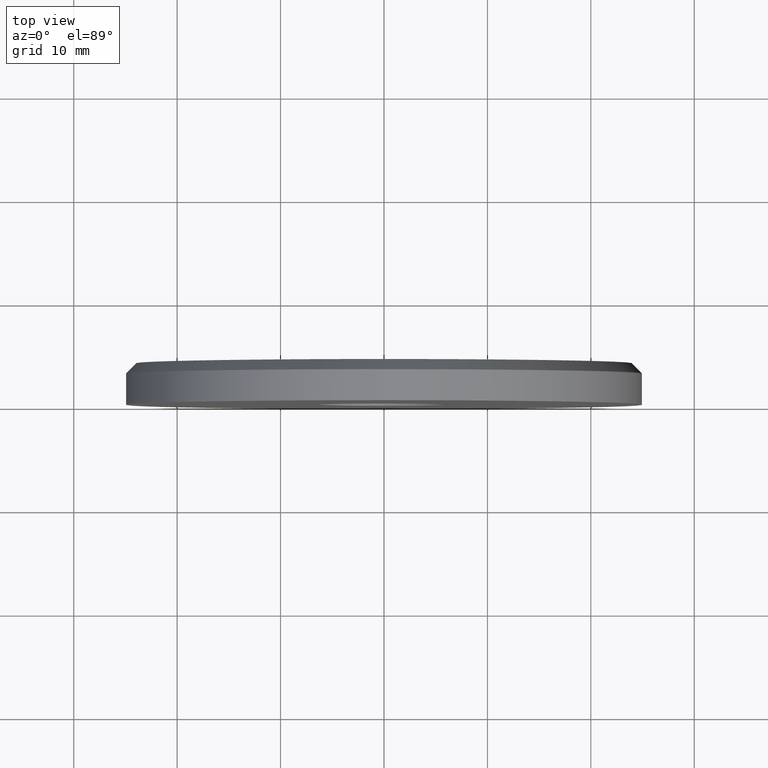
[diagram: clean part render]
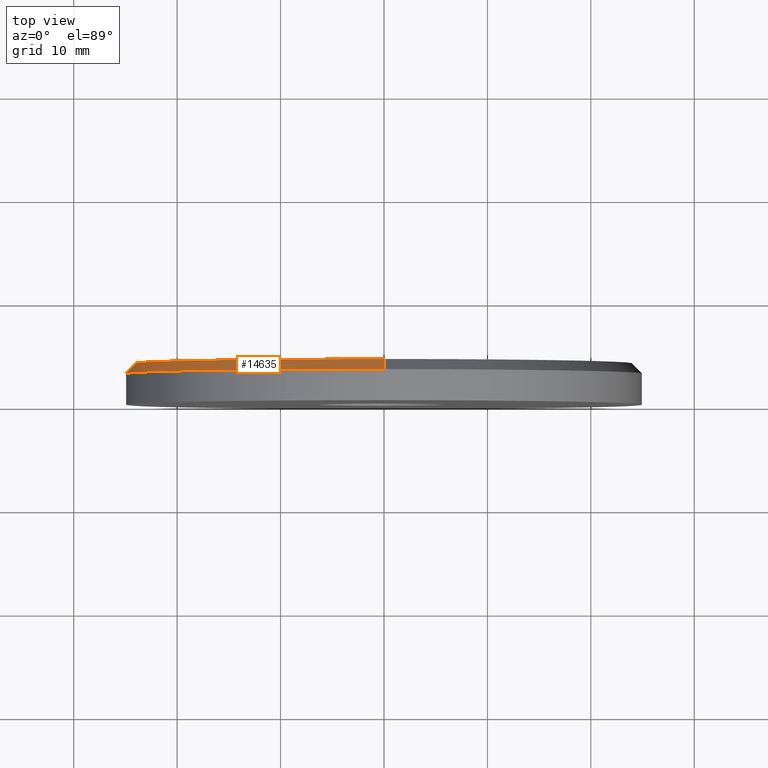
[diagram: same view with one face highlighted and labeled with its STEP entity id]
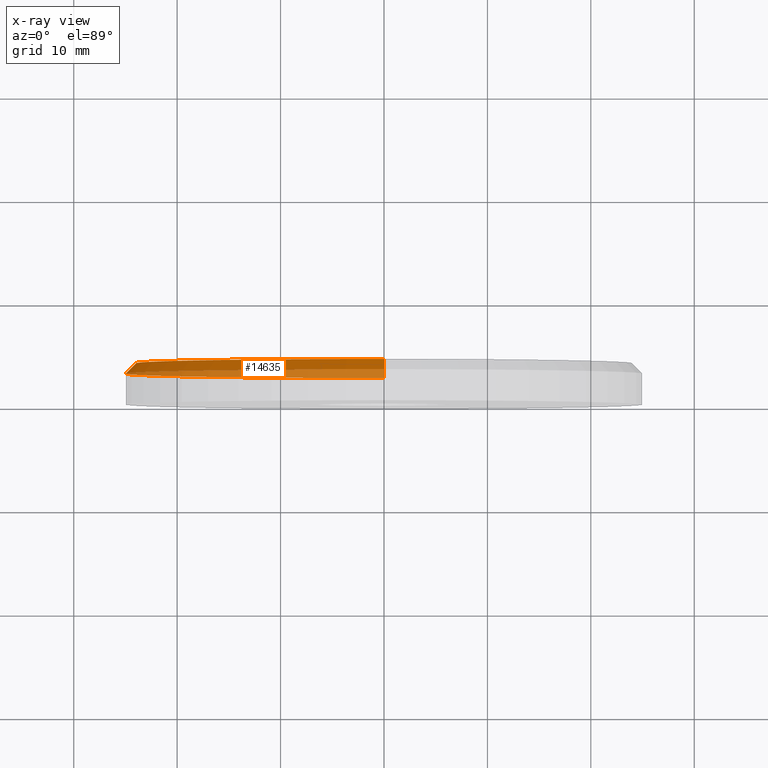
[diagram: x-ray of the same camera — body ghosted, the highlighted face saturated]
A machine part, top view. The second image highlights one B-rep face of the part: STEP entity #14635.
The next image is the same camera in x-ray: the body ghosted, the highlighted face saturated — about 42% of this face is hidden behind the body in this view.
In plain terms, the highlighted conical surface has half-angle 45 deg.
Its self-contained STEP definition (entity closure, byte-faithful):
#1216 = DIRECTION ( 'NONE',  ( 0.000000000000000000, 0.000000000000000000, -1.000000000000000000 ) ) ;
#1283 = CARTESIAN_POINT ( 'NONE',  ( 3.000384657911015469E-15, 4.000000000000000000, 24.00000000000000711 ) ) ;
#1428 = EDGE_CURVE ( 'NONE', #8992, #12769, #6587, .T. ) ;
#1842 = FACE_OUTER_BOUND ( 'NONE', #1934, .T. ) ;
#1909 = DIRECTION ( 'NONE',  ( 0.000000000000000000, 0.000000000000000000, 1.000000000000000000 ) ) ;
#1934 = EDGE_LOOP ( 'NONE', ( #2573, #5367, #5213, #4718 ) ) ;
#2573 = ORIENTED_EDGE ( 'NONE', *, *, #8766, .F. ) ;
#3042 = DIRECTION ( 'NONE',  ( 0.000000000000000000, 1.000000000000000000, 0.000000000000000000 ) ) ;
#3083 = DIRECTION ( 'NONE',  ( 0.000000000000000000, 0.000000000000000000, 1.000000000000000000 ) ) ;
#4718 = ORIENTED_EDGE ( 'NONE', *, *, #10064, .F. ) ;
#4857 = AXIS2_PLACEMENT_3D ( 'NONE', #9062, #7793, #3083 ) ;
#5213 = ORIENTED_EDGE ( 'NONE', *, *, #1428, .T. ) ;
#5215 = CIRCLE ( 'NONE', #12175, 24.00000000000000711 ) ;
#5367 = ORIENTED_EDGE ( 'NONE', *, *, #13848, .F. ) ;
#5786 = AXIS2_PLACEMENT_3D ( 'NONE', #12017, #13266, #1216 ) ;
#5827 = CARTESIAN_POINT ( 'NONE',  ( 2.939152317953648683E-15, 4.000000000000000000, 24.00000000000000711 ) ) ;
#6030 = VECTOR ( 'NONE', #14020, 1000.000000000000000 ) ;
#6208 = VECTOR ( 'NONE', #14225, 1000.000000000000000 ) ;
#6587 = LINE ( 'NONE', #15196, #6208 ) ;
#7714 = VERTEX_POINT ( 'NONE', #11060 ) ;
#7793 = DIRECTION ( 'NONE',  ( 0.000000000000000000, -1.000000000000000000, 0.000000000000000000 ) ) ;
#8766 = EDGE_CURVE ( 'NONE', #11738, #7714, #12923, .T. ) ;
#8992 = VERTEX_POINT ( 'NONE', #10926 ) ;
#8995 = CIRCLE ( 'NONE', #4857, 25.00000000000000000 ) ;
#9062 = CARTESIAN_POINT ( 'NONE',  ( 0.000000000000000000, 3.000000000000009770, 0.000000000000000000 ) ) ;
#9257 = CARTESIAN_POINT ( 'NONE',  ( 0.000000000000000000, 3.000000000000009770, -25.00000000000000000 ) ) ;
#10064 = EDGE_CURVE ( 'NONE', #7714, #12769, #8995, .T. ) ;
#10926 = CARTESIAN_POINT ( 'NONE',  ( 0.000000000000000000, 4.000000000000000000, -24.00000000000000711 ) ) ;
#11060 = CARTESIAN_POINT ( 'NONE',  ( 3.061616997868383043E-15, 3.000000000000009770, 25.00000000000000000 ) ) ;
#11376 = CONICAL_SURFACE ( 'NONE', #5786, 24.00000000000000711, 0.7853981633974500554 ) ;
#11738 = VERTEX_POINT ( 'NONE', #1283 ) ;
#12017 = CARTESIAN_POINT ( 'NONE',  ( 0.000000000000000000, 4.000000000000000000, 0.000000000000000000 ) ) ;
#12175 = AXIS2_PLACEMENT_3D ( 'NONE', #12456, #3042, #1909 ) ;
#12456 = CARTESIAN_POINT ( 'NONE',  ( 0.000000000000000000, 4.000000000000000000, 0.000000000000000000 ) ) ;
#12769 = VERTEX_POINT ( 'NONE', #9257 ) ;
#12923 = LINE ( 'NONE', #5827, #6030 ) ;
#13266 = DIRECTION ( 'NONE',  ( 0.000000000000000000, -1.000000000000000000, 0.000000000000000000 ) ) ;
#13848 = EDGE_CURVE ( 'NONE', #8992, #11738, #5215, .T. ) ;
#14020 = DIRECTION ( 'NONE',  ( 8.659560562354950115E-17, -0.7071067811865463515, 0.7071067811865487940 ) ) ;
#14225 = DIRECTION ( 'NONE',  ( 0.000000000000000000, -0.7071067811865463515, -0.7071067811865487940 ) ) ;
#14635 = ADVANCED_FACE ( 'NONE', ( #1842 ), #11376, .T. ) ;
#15196 = CARTESIAN_POINT ( 'NONE',  ( 0.000000000000000000, 4.000000000000000000, -24.00000000000000711 ) ) ;